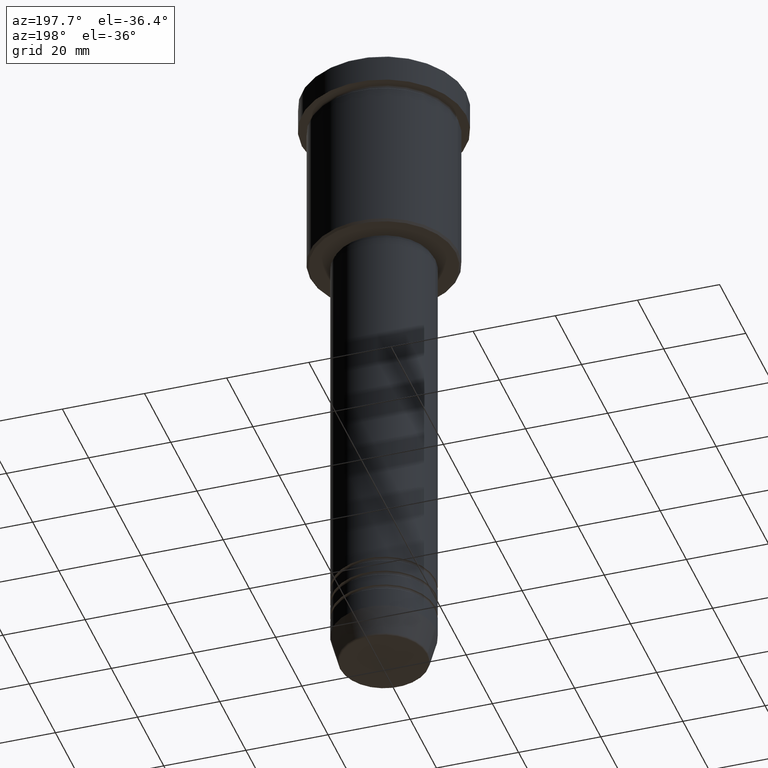
[diagram: clean part render]
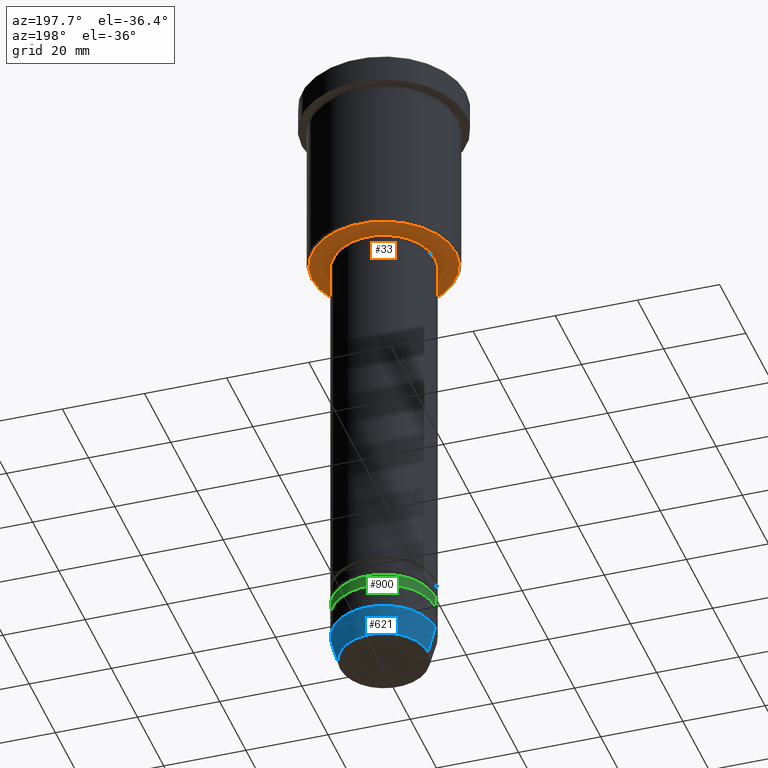
[diagram: same view with three faces highlighted in distinct colors, each labeled with its STEP entity id]
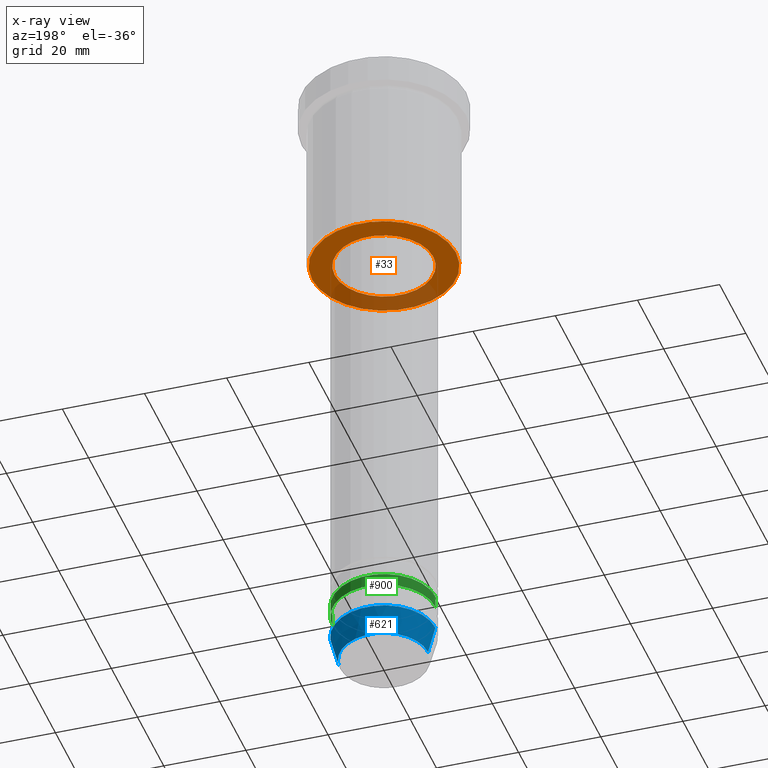
[diagram: x-ray of the same camera — body ghosted, the three highlighted faces saturated]
A machine part, auxiliary view with three faces highlighted in distinct colors.
The next image is the same camera in x-ray (body ghosted, the three faces saturated) — at least one of them is partly hidden behind the body in this view.
Their STEP definitions:

[orange] entity #33 — the highlighted planar face has unit normal (0, 0, -1).
#33 = ADVANCED_FACE ( 'NONE', ( #214, #1124 ), #569, .T. ) ;
#39 = ORIENTED_EDGE ( 'NONE', *, *, #989, .T. ) ;
#51 = CIRCLE ( 'NONE', #217, 17.50000000000002842 ) ;
#54 = AXIS2_PLACEMENT_3D ( 'NONE', #468, #82, #444 ) ;
#68 = EDGE_CURVE ( 'NONE', #623, #874, #51, .T. ) ;
#78 = DIRECTION ( 'NONE',  ( 0.000000000000000000, 0.000000000000000000, -1.000000000000000000 ) ) ;
#82 = DIRECTION ( 'NONE',  ( -0.000000000000000000, -0.000000000000000000, 1.000000000000000000 ) ) ;
#85 = CARTESIAN_POINT ( 'NONE',  ( 0.000000000000000000, 0.000000000000000000, -46.00000000000000000 ) ) ;
#114 = AXIS2_PLACEMENT_3D ( 'NONE', #85, #78, #368 ) ;
#195 = CARTESIAN_POINT ( 'NONE',  ( 17.50000000000002842, 0.000000000000000000, -46.00000000000000000 ) ) ;
#204 = ORIENTED_EDGE ( 'NONE', *, *, #669, .T. ) ;
#214 = FACE_OUTER_BOUND ( 'NONE', #421, .T. ) ;
#217 = AXIS2_PLACEMENT_3D ( 'NONE', #1110, #754, #666 ) ;
#281 = CIRCLE ( 'NONE', #1183, 12.00000000000000000 ) ;
#326 = DIRECTION ( 'NONE',  ( 0.000000000000000000, 0.000000000000000000, -1.000000000000000000 ) ) ;
#328 = CARTESIAN_POINT ( 'NONE',  ( -17.50000000000002842, 2.173748068486553613E-15, -46.00000000000000000 ) ) ;
#368 = DIRECTION ( 'NONE',  ( -1.000000000000000000, 0.000000000000000000, 0.000000000000000000 ) ) ;
#421 = EDGE_LOOP ( 'NONE', ( #793, #522 ) ) ;
#443 = VERTEX_POINT ( 'NONE', #732 ) ;
#444 = DIRECTION ( 'NONE',  ( 1.000000000000000000, 0.000000000000000000, 0.000000000000000000 ) ) ;
#456 = EDGE_CURVE ( 'NONE', #874, #623, #537, .T. ) ;
#468 = CARTESIAN_POINT ( 'NONE',  ( 0.000000000000000000, 0.000000000000000000, -46.00000000000000711 ) ) ;
#479 = CARTESIAN_POINT ( 'NONE',  ( 0.000000000000000000, 18.00000000000000000, -46.00000000000000000 ) ) ;
#522 = ORIENTED_EDGE ( 'NONE', *, *, #456, .T. ) ;
#537 = CIRCLE ( 'NONE', #114, 17.50000000000002842 ) ;
#538 = CARTESIAN_POINT ( 'NONE',  ( 0.000000000000000000, 0.000000000000000000, -46.00000000000000711 ) ) ;
#569 = PLANE ( 'NONE',  #1016 ) ;
#623 = VERTEX_POINT ( 'NONE', #195 ) ;
#655 = EDGE_LOOP ( 'NONE', ( #39, #204 ) ) ;
#666 = DIRECTION ( 'NONE',  ( -1.000000000000000000, 0.000000000000000000, 0.000000000000000000 ) ) ;
#669 = EDGE_CURVE ( 'NONE', #673, #443, #759, .T. ) ;
#673 = VERTEX_POINT ( 'NONE', #1173 ) ;
#693 = DIRECTION ( 'NONE',  ( 1.000000000000000000, 0.000000000000000000, 0.000000000000000000 ) ) ;
#732 = CARTESIAN_POINT ( 'NONE',  ( 12.00000000000000000, 0.000000000000000000, -46.00000000000000711 ) ) ;
#754 = DIRECTION ( 'NONE',  ( 0.000000000000000000, 0.000000000000000000, -1.000000000000000000 ) ) ;
#759 = CIRCLE ( 'NONE', #54, 12.00000000000000000 ) ;
#793 = ORIENTED_EDGE ( 'NONE', *, *, #68, .T. ) ;
#861 = DIRECTION ( 'NONE',  ( -0.000000000000000000, -0.000000000000000000, 1.000000000000000000 ) ) ;
#874 = VERTEX_POINT ( 'NONE', #328 ) ;
#989 = EDGE_CURVE ( 'NONE', #443, #673, #281, .T. ) ;
#1015 = DIRECTION ( 'NONE',  ( -1.000000000000000000, 0.000000000000000000, -0.000000000000000000 ) ) ;
#1016 = AXIS2_PLACEMENT_3D ( 'NONE', #479, #326, #1015 ) ;
#1110 = CARTESIAN_POINT ( 'NONE',  ( 0.000000000000000000, 0.000000000000000000, -46.00000000000000000 ) ) ;
#1124 = FACE_BOUND ( 'NONE', #655, .T. ) ;
#1173 = CARTESIAN_POINT ( 'NONE',  ( -12.00000000000000000, 1.469576158976823947E-15, -46.00000000000000711 ) ) ;
#1183 = AXIS2_PLACEMENT_3D ( 'NONE', #538, #861, #693 ) ;

[blue] entity #621 — the highlighted conical surface has half-angle 15 deg.
#49 = EDGE_CURVE ( 'NONE', #355, #142, #393, .T. ) ;
#103 = FACE_OUTER_BOUND ( 'NONE', #120, .T. ) ;
#120 = EDGE_LOOP ( 'NONE', ( #259, #509, #318, #282 ) ) ;
#139 = AXIS2_PLACEMENT_3D ( 'NONE', #653, #1132, #391 ) ;
#142 = VERTEX_POINT ( 'NONE', #704 ) ;
#165 = DIRECTION ( 'NONE',  ( 1.000000000000000000, 0.000000000000000000, 0.000000000000000000 ) ) ;
#259 = ORIENTED_EDGE ( 'NONE', *, *, #814, .T. ) ;
#263 = VECTOR ( 'NONE', #925, 1000.000000000000000 ) ;
#265 = CARTESIAN_POINT ( 'NONE',  ( 0.000000000000000000, 0.000000000000000000, -153.0000000000000000 ) ) ;
#276 = VERTEX_POINT ( 'NONE', #946 ) ;
#282 = ORIENTED_EDGE ( 'NONE', *, *, #49, .F. ) ;
#318 = ORIENTED_EDGE ( 'NONE', *, *, #510, .F. ) ;
#355 = VERTEX_POINT ( 'NONE', #370 ) ;
#370 = CARTESIAN_POINT ( 'NONE',  ( 10.72365507213719660, 0.000000000000000000, -159.6294095225512706 ) ) ;
#391 = DIRECTION ( 'NONE',  ( 1.000000000000000000, 0.000000000000000000, 0.000000000000000000 ) ) ;
#393 = LINE ( 'NONE', #753, #420 ) ;
#420 = VECTOR ( 'NONE', #438, 1000.000000000000000 ) ;
#438 = DIRECTION ( 'NONE',  ( 0.2588190451025203509, 0.000000000000000000, 0.9659258262890684232 ) ) ;
#486 = CARTESIAN_POINT ( 'NONE',  ( -12.50000000000000000, 1.530808498934191521E-15, -153.0000000000000000 ) ) ;
#509 = ORIENTED_EDGE ( 'NONE', *, *, #1037, .T. ) ;
#510 = EDGE_CURVE ( 'NONE', #142, #904, #1095, .T. ) ;
#570 = LINE ( 'NONE', #486, #263 ) ;
#621 = ADVANCED_FACE ( 'NONE', ( #103 ), #683, .T. ) ;
#639 = AXIS2_PLACEMENT_3D ( 'NONE', #1069, #903, #991 ) ;
#653 = CARTESIAN_POINT ( 'NONE',  ( 0.000000000000000000, 0.000000000000000000, -159.6294095225512706 ) ) ;
#660 = AXIS2_PLACEMENT_3D ( 'NONE', #265, #970, #165 ) ;
#683 = CONICAL_SURFACE ( 'NONE', #639, 12.50000000000000000, 0.2617993877991490193 ) ;
#704 = CARTESIAN_POINT ( 'NONE',  ( 12.50000000000000000, 0.000000000000000000, -153.0000000000000000 ) ) ;
#753 = CARTESIAN_POINT ( 'NONE',  ( 12.50000000000000000, 0.000000000000000000, -153.0000000000000000 ) ) ;
#814 = EDGE_CURVE ( 'NONE', #355, #276, #961, .T. ) ;
#903 = DIRECTION ( 'NONE',  ( -0.000000000000000000, -0.000000000000000000, 1.000000000000000000 ) ) ;
#904 = VERTEX_POINT ( 'NONE', #974 ) ;
#925 = DIRECTION ( 'NONE',  ( -0.2588190451025203509, 3.169619151431760011E-17, 0.9659258262890684232 ) ) ;
#946 = CARTESIAN_POINT ( 'NONE',  ( -10.72365507213719660, 1.422038742429750713E-15, -159.6294095225512706 ) ) ;
#961 = CIRCLE ( 'NONE', #139, 10.72365507213719660 ) ;
#970 = DIRECTION ( 'NONE',  ( -0.000000000000000000, -0.000000000000000000, 1.000000000000000000 ) ) ;
#974 = CARTESIAN_POINT ( 'NONE',  ( -12.50000000000000000, 1.530808498934191521E-15, -153.0000000000000000 ) ) ;
#991 = DIRECTION ( 'NONE',  ( 1.000000000000000000, 0.000000000000000000, 0.000000000000000000 ) ) ;
#1037 = EDGE_CURVE ( 'NONE', #276, #904, #570, .T. ) ;
#1069 = CARTESIAN_POINT ( 'NONE',  ( 0.000000000000000000, 0.000000000000000000, -153.0000000000000000 ) ) ;
#1095 = CIRCLE ( 'NONE', #660, 12.50000000000000000 ) ;
#1132 = DIRECTION ( 'NONE',  ( -0.000000000000000000, -0.000000000000000000, 1.000000000000000000 ) ) ;

[green] entity #900 — the highlighted cylindrical surface (partial cylindrical patch) has radius 12.5 mm, axis along (-0, -0, 1).
#11 = AXIS2_PLACEMENT_3D ( 'NONE', #375, #353, #543 ) ;
#16 = LINE ( 'NONE', #1129, #916 ) ;
#42 = DIRECTION ( 'NONE',  ( -0.000000000000000000, -0.000000000000000000, 1.000000000000000000 ) ) ;
#79 = CARTESIAN_POINT ( 'NONE',  ( -12.50000000000000000, 1.530808498934191521E-15, -146.9999999999999716 ) ) ;
#158 = EDGE_CURVE ( 'NONE', #187, #996, #1058, .T. ) ;
#187 = VERTEX_POINT ( 'NONE', #490 ) ;
#210 = DIRECTION ( 'NONE',  ( -0.000000000000000000, -0.000000000000000000, 1.000000000000000000 ) ) ;
#279 = ORIENTED_EDGE ( 'NONE', *, *, #158, .T. ) ;
#353 = DIRECTION ( 'NONE',  ( -0.000000000000000000, -0.000000000000000000, 1.000000000000000000 ) ) ;
#361 = DIRECTION ( 'NONE',  ( 1.000000000000000000, 0.000000000000000000, 0.000000000000000000 ) ) ;
#375 = CARTESIAN_POINT ( 'NONE',  ( 0.000000000000000000, 0.000000000000000000, -146.9999999999999716 ) ) ;
#450 = AXIS2_PLACEMENT_3D ( 'NONE', #1165, #774, #361 ) ;
#461 = ORIENTED_EDGE ( 'NONE', *, *, #852, .F. ) ;
#490 = CARTESIAN_POINT ( 'NONE',  ( 12.50000000000000000, 0.000000000000000000, -146.9999999999999716 ) ) ;
#533 = VERTEX_POINT ( 'NONE', #931 ) ;
#543 = DIRECTION ( 'NONE',  ( 1.000000000000000000, 0.000000000000000000, 0.000000000000000000 ) ) ;
#566 = EDGE_CURVE ( 'NONE', #996, #533, #16, .T. ) ;
#585 = CARTESIAN_POINT ( 'NONE',  ( 0.000000000000000000, 0.000000000000000000, -144.0000000000000000 ) ) ;
#597 = AXIS2_PLACEMENT_3D ( 'NONE', #585, #745, #1106 ) ;
#664 = EDGE_LOOP ( 'NONE', ( #279, #855, #461, #821 ) ) ;
#688 = CYLINDRICAL_SURFACE ( 'NONE', #450, 12.50000000000000000 ) ;
#745 = DIRECTION ( 'NONE',  ( -0.000000000000000000, -0.000000000000000000, 1.000000000000000000 ) ) ;
#774 = DIRECTION ( 'NONE',  ( -0.000000000000000000, -0.000000000000000000, 1.000000000000000000 ) ) ;
#821 = ORIENTED_EDGE ( 'NONE', *, *, #1052, .F. ) ;
#852 = EDGE_CURVE ( 'NONE', #1172, #533, #1176, .T. ) ;
#855 = ORIENTED_EDGE ( 'NONE', *, *, #566, .T. ) ;
#859 = CARTESIAN_POINT ( 'NONE',  ( 12.50000000000000000, 0.000000000000000000, -144.0000000000000000 ) ) ;
#900 = ADVANCED_FACE ( 'NONE', ( #1180 ), #688, .T. ) ;
#908 = CARTESIAN_POINT ( 'NONE',  ( 12.50000000000000000, 0.000000000000000000, 0.000000000000000000 ) ) ;
#916 = VECTOR ( 'NONE', #42, 1000.000000000000000 ) ;
#926 = VECTOR ( 'NONE', #210, 1000.000000000000000 ) ;
#931 = CARTESIAN_POINT ( 'NONE',  ( -12.50000000000000000, 1.530808498934191521E-15, -144.0000000000000000 ) ) ;
#996 = VERTEX_POINT ( 'NONE', #79 ) ;
#1052 = EDGE_CURVE ( 'NONE', #187, #1172, #1112, .T. ) ;
#1058 = CIRCLE ( 'NONE', #11, 12.50000000000000000 ) ;
#1106 = DIRECTION ( 'NONE',  ( 1.000000000000000000, 0.000000000000000000, 0.000000000000000000 ) ) ;
#1112 = LINE ( 'NONE', #908, #926 ) ;
#1129 = CARTESIAN_POINT ( 'NONE',  ( -12.50000000000000000, 1.530808498934191521E-15, 0.000000000000000000 ) ) ;
#1165 = CARTESIAN_POINT ( 'NONE',  ( 0.000000000000000000, 0.000000000000000000, 0.000000000000000000 ) ) ;
#1172 = VERTEX_POINT ( 'NONE', #859 ) ;
#1176 = CIRCLE ( 'NONE', #597, 12.50000000000000000 ) ;
#1180 = FACE_OUTER_BOUND ( 'NONE', #664, .T. ) ;